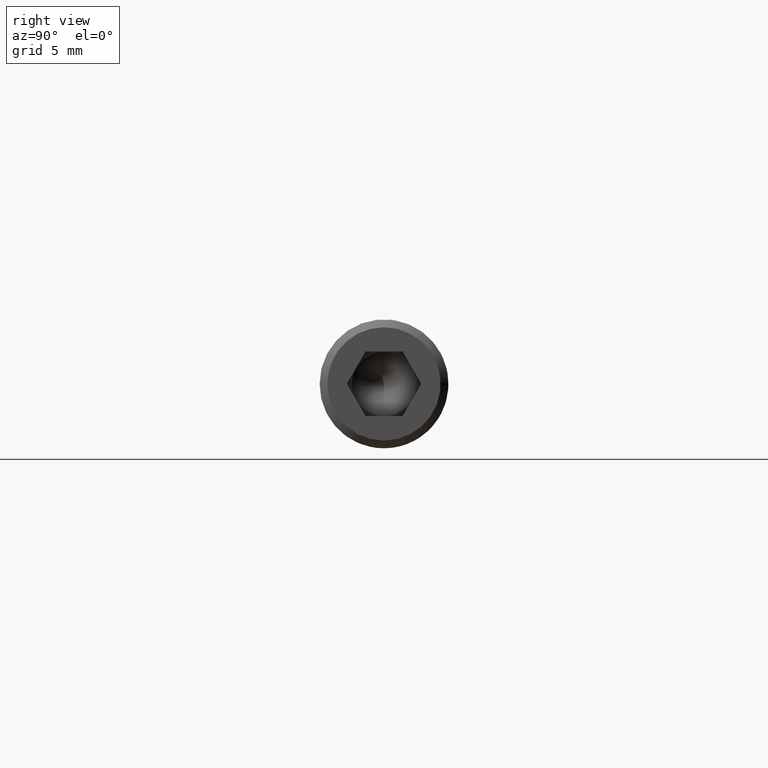
[diagram: clean part render]
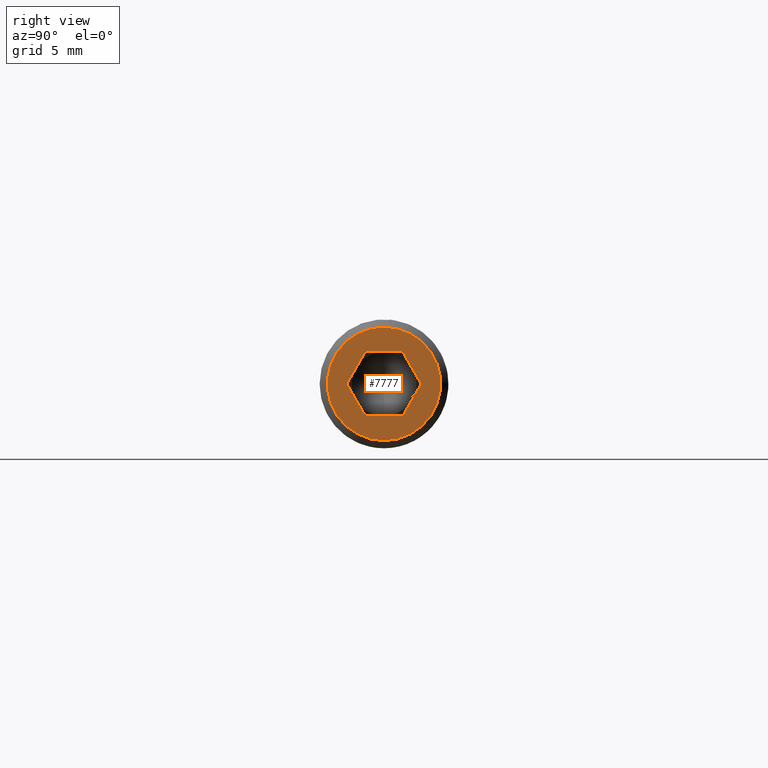
[diagram: same view with one face highlighted and labeled with its STEP entity id]
A machine part, right view. The second image highlights one B-rep face of the part: STEP entity #7777.
In plain terms, the highlighted planar face has unit normal (1, 0, 0).
Its self-contained STEP definition (entity closure, byte-faithful):
#264 = AXIS2_PLACEMENT_3D ( 'NONE', #4917, #2270, #15229 ) ;
#528 = CARTESIAN_POINT ( 'NONE',  ( 55.00000000000000000, 1.443375672974066100, -2.499999999999999100 ) ) ;
#647 = LINE ( 'NONE', #13659, #1039 ) ;
#764 = CARTESIAN_POINT ( 'NONE',  ( 55.00000000000000000, -2.886751345948128700, 8.680715504385284100E-016 ) ) ;
#816 = LINE ( 'NONE', #764, #3411 ) ;
#970 = EDGE_CURVE ( 'NONE', #13014, #13905, #5868, .T. ) ;
#1039 = VECTOR ( 'NONE', #2237, 1000.000000000000100 ) ;
#1305 = ORIENTED_EDGE ( 'NONE', *, *, #2354, .T. ) ;
#2111 = CARTESIAN_POINT ( 'NONE',  ( 55.00000000000000000, -1.443375672974064100, 2.500000000000000400 ) ) ;
#2237 = DIRECTION ( 'NONE',  ( 0.0000000000000000000, -0.4999999999999997200, 0.8660254037844387100 ) ) ;
#2270 = DIRECTION ( 'NONE',  ( 1.000000000000000000, 0.0000000000000000000, 0.0000000000000000000 ) ) ;
#2354 = EDGE_CURVE ( 'NONE', #12057, #12057, #12727, .T. ) ;
#2549 = ORIENTED_EDGE ( 'NONE', *, *, #13628, .F. ) ;
#3333 = FACE_OUTER_BOUND ( 'NONE', #12990, .T. ) ;
#3411 = VECTOR ( 'NONE', #8506, 1000.000000000000100 ) ;
#3672 = VERTEX_POINT ( 'NONE', #11445 ) ;
#4297 = EDGE_CURVE ( 'NONE', #6050, #8818, #10370, .T. ) ;
#4517 = CARTESIAN_POINT ( 'NONE',  ( 55.00000000000000000, 2.886751345948130000, -1.196375504677398500E-017 ) ) ;
#4917 = CARTESIAN_POINT ( 'NONE',  ( 55.00000000000000000, 0.0000000000000000000, 0.0000000000000000000 ) ) ;
#5521 = AXIS2_PLACEMENT_3D ( 'NONE', #6409, #10252, #14128 ) ;
#5807 = EDGE_CURVE ( 'NONE', #11164, #13014, #7166, .T. ) ;
#5868 = LINE ( 'NONE', #2111, #15781 ) ;
#6022 = CARTESIAN_POINT ( 'NONE',  ( 55.00000000000000000, 1.443375672974066100, -2.499999999999999100 ) ) ;
#6050 = VERTEX_POINT ( 'NONE', #6022 ) ;
#6409 = CARTESIAN_POINT ( 'NONE',  ( 55.00000000000000000, 0.0000000000000000000, 0.0000000000000000000 ) ) ;
#7166 = LINE ( 'NONE', #12178, #8776 ) ;
#7336 = FACE_BOUND ( 'NONE', #13444, .T. ) ;
#7777 = ADVANCED_FACE ( 'NONE', ( #7336, #3333 ), #15327, .T. ) ;
#7835 = CARTESIAN_POINT ( 'NONE',  ( 55.00000000000000000, 0.0000000000000000000, -4.399999999999996800 ) ) ;
#7928 = CARTESIAN_POINT ( 'NONE',  ( 55.00000000000000000, -1.443375672974065400, -2.499999999999999100 ) ) ;
#8506 = DIRECTION ( 'NONE',  ( 0.0000000000000000000, 0.4999999999999996700, -0.8660254037844388200 ) ) ;
#8573 = CARTESIAN_POINT ( 'NONE',  ( 55.00000000000000000, 1.443375672974066100, 2.500000000000000400 ) ) ;
#8776 = VECTOR ( 'NONE', #11055, 1000.000000000000000 ) ;
#8818 = VERTEX_POINT ( 'NONE', #4517 ) ;
#9434 = CARTESIAN_POINT ( 'NONE',  ( 55.00000000000000000, -1.443375672974064100, 2.500000000000000400 ) ) ;
#9472 = VECTOR ( 'NONE', #15854, 1000.000000000000000 ) ;
#9651 = DIRECTION ( 'NONE',  ( 0.0000000000000000000, -0.5000000000000001100, -0.8660254037844386000 ) ) ;
#10252 = DIRECTION ( 'NONE',  ( 1.000000000000000000, 0.0000000000000000000, 0.0000000000000000000 ) ) ;
#10370 = LINE ( 'NONE', #528, #16162 ) ;
#10698 = ORIENTED_EDGE ( 'NONE', *, *, #4297, .F. ) ;
#11055 = DIRECTION ( 'NONE',  ( 0.0000000000000000000, -1.000000000000000000, 0.0000000000000000000 ) ) ;
#11164 = VERTEX_POINT ( 'NONE', #8573 ) ;
#11445 = CARTESIAN_POINT ( 'NONE',  ( 55.00000000000000000, -1.443375672974065400, -2.499999999999999100 ) ) ;
#11878 = ORIENTED_EDGE ( 'NONE', *, *, #5807, .F. ) ;
#12007 = ORIENTED_EDGE ( 'NONE', *, *, #15765, .F. ) ;
#12057 = VERTEX_POINT ( 'NONE', #7835 ) ;
#12099 = ORIENTED_EDGE ( 'NONE', *, *, #970, .F. ) ;
#12178 = CARTESIAN_POINT ( 'NONE',  ( 55.00000000000000000, 1.443375672974066100, 2.500000000000000400 ) ) ;
#12727 = CIRCLE ( 'NONE', #264, 4.399999999999996800 ) ;
#12888 = LINE ( 'NONE', #7928, #9472 ) ;
#12990 = EDGE_LOOP ( 'NONE', ( #1305 ) ) ;
#13014 = VERTEX_POINT ( 'NONE', #9434 ) ;
#13375 = DIRECTION ( 'NONE',  ( 0.0000000000000000000, 0.4999999999999999400, 0.8660254037844387100 ) ) ;
#13444 = EDGE_LOOP ( 'NONE', ( #12099, #11878, #15318, #10698, #2549, #12007 ) ) ;
#13628 = EDGE_CURVE ( 'NONE', #3672, #6050, #12888, .T. ) ;
#13659 = CARTESIAN_POINT ( 'NONE',  ( 55.00000000000000000, 2.886751345948130000, -1.196375504677398500E-017 ) ) ;
#13757 = EDGE_CURVE ( 'NONE', #8818, #11164, #647, .T. ) ;
#13905 = VERTEX_POINT ( 'NONE', #15136 ) ;
#14128 = DIRECTION ( 'NONE',  ( 0.0000000000000000000, 0.0000000000000000000, -1.000000000000000000 ) ) ;
#15136 = CARTESIAN_POINT ( 'NONE',  ( 55.00000000000000000, -2.886751345948128700, 6.505213034913026600E-016 ) ) ;
#15229 = DIRECTION ( 'NONE',  ( 0.0000000000000000000, 0.0000000000000000000, -1.000000000000000000 ) ) ;
#15318 = ORIENTED_EDGE ( 'NONE', *, *, #13757, .F. ) ;
#15327 = PLANE ( 'NONE',  #5521 ) ;
#15765 = EDGE_CURVE ( 'NONE', #13905, #3672, #816, .T. ) ;
#15781 = VECTOR ( 'NONE', #9651, 1000.000000000000000 ) ;
#15854 = DIRECTION ( 'NONE',  ( 0.0000000000000000000, 1.000000000000000000, 0.0000000000000000000 ) ) ;
#16162 = VECTOR ( 'NONE', #13375, 999.9999999999998900 ) ;